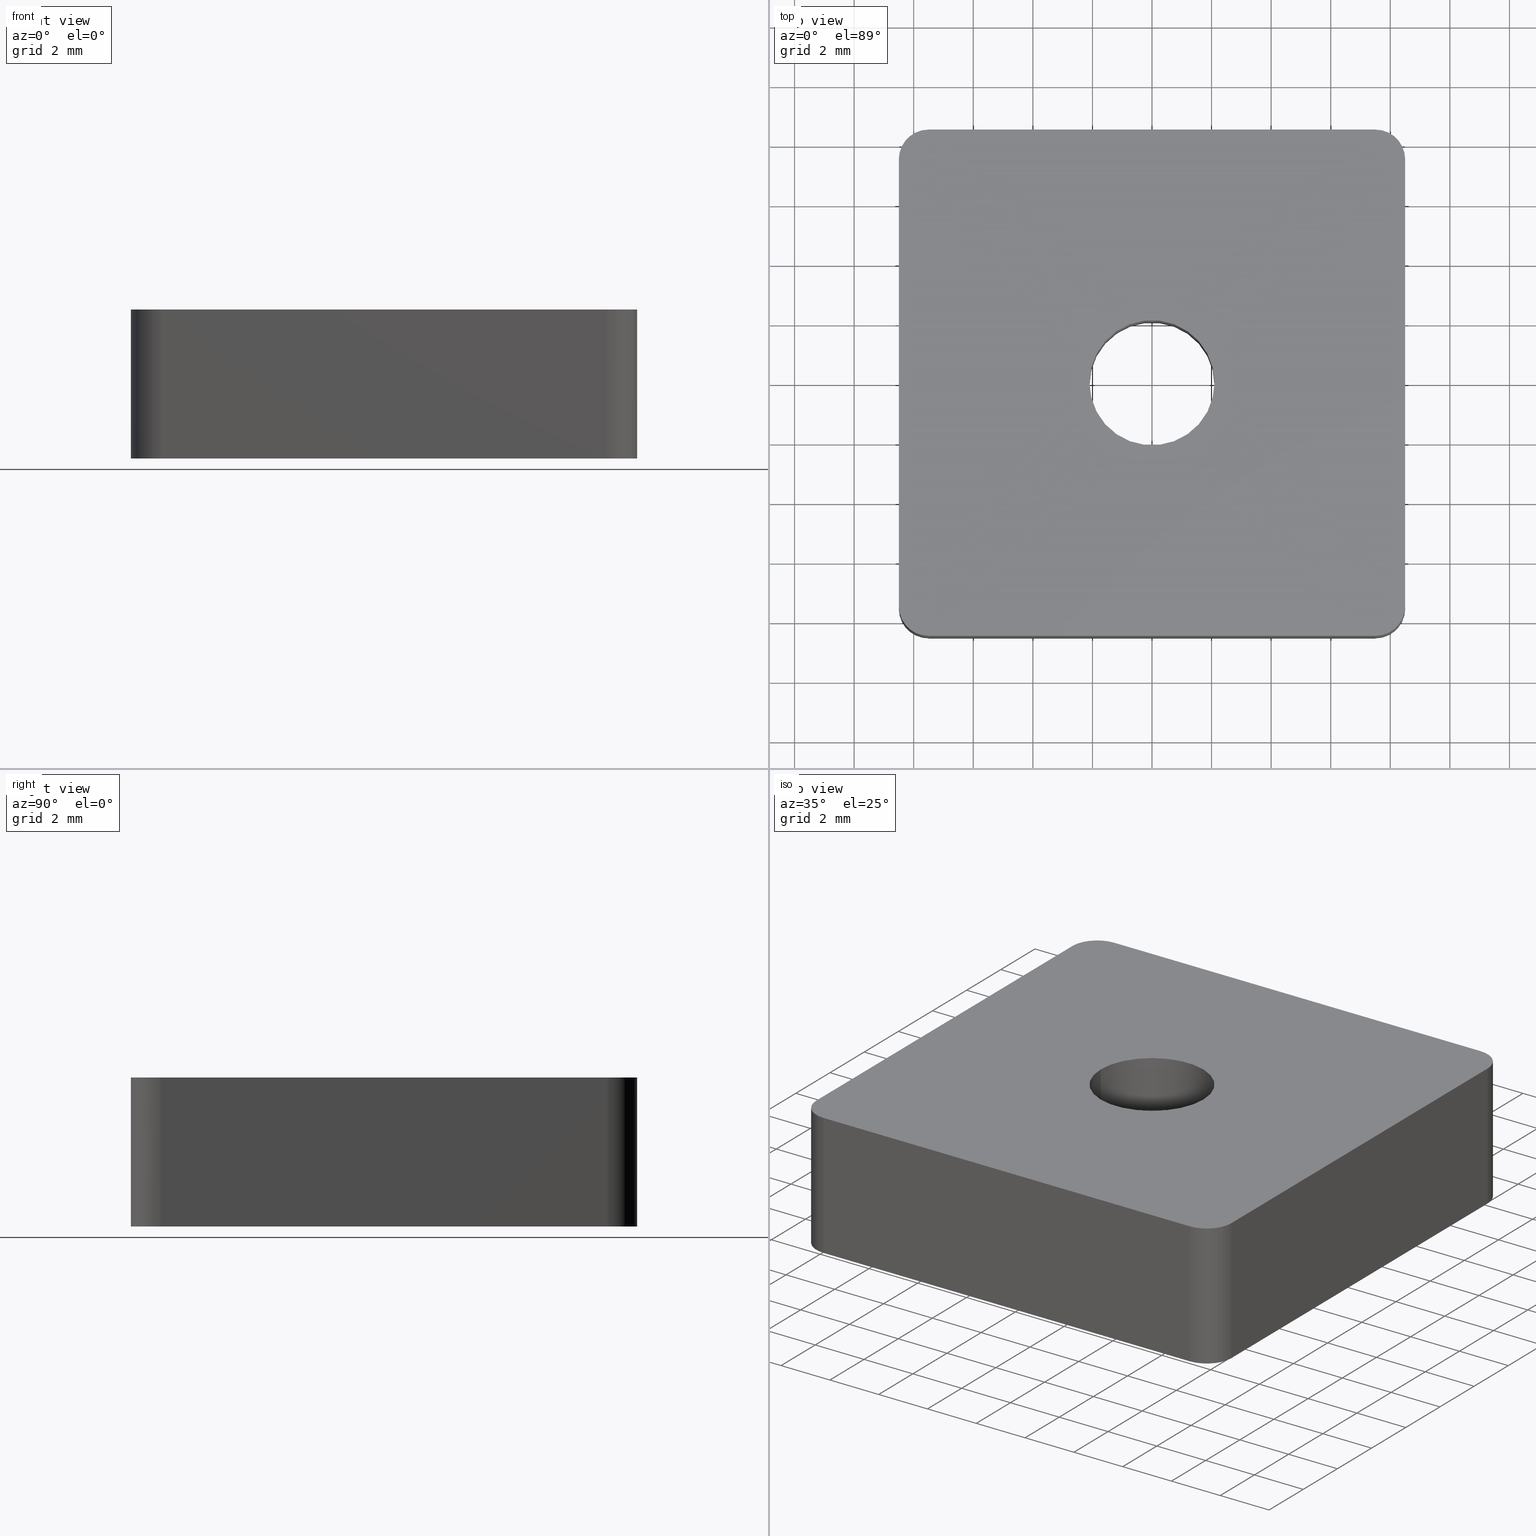
[diagram: canonical four-view strip — front | top / right | iso, engineering-drawing reading convention]
A machine part, canonical four-view strip (front | top / right | iso — engineering-drawing reading convention). The complete STEP part file that produces these views, byte-faithful:
ISO-10303-21;
HEADER;
/****************************************************************
 * Generated by software with PDE/Lib inside                    *
 * PDElib Version v4.4, created Mon 02/23/2004                  *
 * International Technegroup Inc. (www.iti-oh.com)              *
 ****************************************************************/
FILE_DESCRIPTION(('STEP AP203'),'2;1');
FILE_NAME('26.006.00.stp','2011-02-14T10:00:33',(''),(''),'2009.3.110','THINKDESIGN','');
FILE_SCHEMA(('CONFIG_CONTROL_DESIGN'));
ENDSEC;
DATA;
#2=CARTESIAN_POINT('',(7.105427E-015,0.0,-5.000000010000001));
#3=DIRECTION('',(0.0,0.0,1.0));
#4=DIRECTION('',(0.0,1.0,0.0));
#5=AXIS2_PLACEMENT_3D('',#2,#3,#4);
#6=CYLINDRICAL_SURFACE('',#5,2.099999999999997);
#7=CARTESIAN_POINT('',(-2.100000000000001,0.0,-5.0));
#8=VERTEX_POINT('',#7);
#9=CARTESIAN_POINT('',(2.100000000000001,0.0,-5.0));
#10=VERTEX_POINT('',#9);
#11=CARTESIAN_POINT('',(0.0,0.0,-5.0));
#12=DIRECTION('',(0.0,0.0,1.0));
#13=DIRECTION('',(1.0,0.0,0.0));
#14=AXIS2_PLACEMENT_3D('',#11,#12,#13);
#15=CIRCLE('',#14,2.099999999999997);
#16=EDGE_CURVE('',#8,#10,#15,.T.);
#17=ORIENTED_EDGE('',*,*,#16,.F.);
#18=CARTESIAN_POINT('',(-2.100000000000001,0.0,0.0));
#19=VERTEX_POINT('',#18);
#20=CARTESIAN_POINT('',(-2.100000000000001,0.0,-5.0));
#21=DIRECTION('',(0.0,0.0,1.0));
#22=VECTOR('',#21,5.0);
#23=LINE('',#20,#22);
#24=EDGE_CURVE('',#8,#19,#23,.T.);
#25=ORIENTED_EDGE('',*,*,#24,.T.);
#26=CARTESIAN_POINT('',(2.100000000000001,0.0,0.0));
#27=VERTEX_POINT('',#26);
#28=CARTESIAN_POINT('',(0.0,0.0,0.0));
#29=DIRECTION('',(0.0,0.0,1.0));
#30=DIRECTION('',(0.0,1.0,0.0));
#31=AXIS2_PLACEMENT_3D('',#28,#29,#30);
#32=CIRCLE('',#31,2.100000000000001);
#33=EDGE_CURVE('',#19,#27,#32,.T.);
#34=ORIENTED_EDGE('',*,*,#33,.T.);
#35=CARTESIAN_POINT('',(2.100000000000001,0.0,-5.0));
#36=DIRECTION('',(0.0,0.0,1.0));
#37=VECTOR('',#36,5.0);
#38=LINE('',#35,#37);
#39=EDGE_CURVE('',#10,#27,#38,.T.);
#40=ORIENTED_EDGE('',*,*,#39,.F.);
#41=EDGE_LOOP('',(#17,#25,#34,#40));
#42=FACE_OUTER_BOUND('',#41,.T.);
#43=ADVANCED_FACE('',(#42),#6,.F.);
#44=CARTESIAN_POINT('',(-8.500000000000000,-8.249999999999979,0.250000000000000));
#45=DIRECTION('',(1.0,0.0,0.0));
#46=DIRECTION('',(0.0,0.0,-1.0));
#47=AXIS2_PLACEMENT_3D('',#44,#45,#46);
#48=PLANE('',#47);
#49=CARTESIAN_POINT('',(-8.500000000000000,7.500000000000012,0.0));
#50=VERTEX_POINT('',#49);
#51=CARTESIAN_POINT('',(-8.500000000000000,-7.499999999999979,0.0));
#52=VERTEX_POINT('',#51);
#53=CARTESIAN_POINT('',(-8.500000000000000,7.500000000000012,0.0));
#54=DIRECTION('',(0.0,-1.0,0.0));
#55=VECTOR('',#54,14.999999999999989);
#56=LINE('',#53,#55);
#57=EDGE_CURVE('',#50,#52,#56,.T.);
#58=ORIENTED_EDGE('',*,*,#57,.F.);
#59=CARTESIAN_POINT('',(-8.500000000000000,7.500000000000012,-5.0));
#60=VERTEX_POINT('',#59);
#61=CARTESIAN_POINT('',(-8.500000000000000,7.500000000000012,0.0));
#62=DIRECTION('',(0.0,0.0,-1.0));
#63=VECTOR('',#62,5.0);
#64=LINE('',#61,#63);
#65=EDGE_CURVE('',#50,#60,#64,.T.);
#66=ORIENTED_EDGE('',*,*,#65,.T.);
#67=CARTESIAN_POINT('',(-8.500000000000000,-7.499999999999979,-5.0));
#68=VERTEX_POINT('',#67);
#69=CARTESIAN_POINT('',(-8.500000000000000,7.500000000000012,-5.0));
#70=DIRECTION('',(0.0,-1.0,0.0));
#71=VECTOR('',#70,14.999999999999989);
#72=LINE('',#69,#71);
#73=EDGE_CURVE('',#60,#68,#72,.T.);
#74=ORIENTED_EDGE('',*,*,#73,.T.);
#75=CARTESIAN_POINT('',(-8.500000000000000,-7.499999999999979,-5.0));
#76=DIRECTION('',(0.0,0.0,1.0));
#77=VECTOR('',#76,5.0);
#78=LINE('',#75,#77);
#79=EDGE_CURVE('',#68,#52,#78,.T.);
#80=ORIENTED_EDGE('',*,*,#79,.T.);
#81=EDGE_LOOP('',(#58,#66,#74,#80));
#82=FACE_OUTER_BOUND('',#81,.T.);
#83=ADVANCED_FACE('',(#82),#48,.F.);
#84=CARTESIAN_POINT('',(-8.250000000000000,-8.500000000000000,-5.250000000000000));
#85=DIRECTION('',(0.0,1.0,0.0));
#86=DIRECTION('',(0.0,0.0,1.0));
#87=AXIS2_PLACEMENT_3D('',#84,#85,#86);
#88=PLANE('',#87);
#89=CARTESIAN_POINT('',(-7.500000000000000,-8.500000000000000,-5.0));
#90=VERTEX_POINT('',#89);
#91=CARTESIAN_POINT('',(7.499999999999993,-8.500000000000000,-5.0));
#92=VERTEX_POINT('',#91);
#93=CARTESIAN_POINT('',(-7.500000000000000,-8.500000000000000,-5.0));
#94=DIRECTION('',(1.0,0.0,0.0));
#95=VECTOR('',#94,14.999999999999993);
#96=LINE('',#93,#95);
#97=EDGE_CURVE('',#90,#92,#96,.T.);
#98=ORIENTED_EDGE('',*,*,#97,.T.);
#99=CARTESIAN_POINT('',(7.499999999999993,-8.500000000000000,0.0));
#100=VERTEX_POINT('',#99);
#101=CARTESIAN_POINT('',(7.499999999999993,-8.500000000000000,-5.0));
#102=DIRECTION('',(0.0,0.0,1.0));
#103=VECTOR('',#102,5.0);
#104=LINE('',#101,#103);
#105=EDGE_CURVE('',#92,#100,#104,.T.);
#106=ORIENTED_EDGE('',*,*,#105,.T.);
#107=CARTESIAN_POINT('',(-7.500000000000000,-8.500000000000000,0.0));
#108=VERTEX_POINT('',#107);
#109=CARTESIAN_POINT('',(-7.500000000000000,-8.500000000000000,0.0));
#110=DIRECTION('',(1.0,0.0,0.0));
#111=VECTOR('',#110,14.999999999999993);
#112=LINE('',#109,#111);
#113=EDGE_CURVE('',#108,#100,#112,.T.);
#114=ORIENTED_EDGE('',*,*,#113,.F.);
#115=CARTESIAN_POINT('',(-7.500000000000000,-8.500000000000000,0.0));
#116=DIRECTION('',(0.0,0.0,-1.0));
#117=VECTOR('',#116,5.0);
#118=LINE('',#115,#117);
#119=EDGE_CURVE('',#108,#90,#118,.T.);
#120=ORIENTED_EDGE('',*,*,#119,.T.);
#121=EDGE_LOOP('',(#98,#106,#114,#120));
#122=FACE_OUTER_BOUND('',#121,.T.);
#123=ADVANCED_FACE('',(#122),#88,.F.);
#124=CARTESIAN_POINT('',(8.499999999999993,-8.249999999999979,-5.250000000000000));
#125=DIRECTION('',(-1.0,0.0,0.0));
#126=DIRECTION('',(0.0,0.0,1.0));
#127=AXIS2_PLACEMENT_3D('',#124,#125,#126);
#128=PLANE('',#127);
#129=CARTESIAN_POINT('',(8.499999999999993,-7.499999999999979,-5.0));
#130=VERTEX_POINT('',#129);
#131=CARTESIAN_POINT('',(8.499999999999993,7.500000000000012,-5.0));
#132=VERTEX_POINT('',#131);
#133=CARTESIAN_POINT('',(8.499999999999993,-7.499999999999979,-5.0));
#134=DIRECTION('',(0.0,1.0,0.0));
#135=VECTOR('',#134,14.999999999999989);
#136=LINE('',#133,#135);
#137=EDGE_CURVE('',#130,#132,#136,.T.);
#138=ORIENTED_EDGE('',*,*,#137,.T.);
#139=CARTESIAN_POINT('',(8.499999999999993,7.500000000000012,0.0));
#140=VERTEX_POINT('',#139);
#141=CARTESIAN_POINT('',(8.499999999999993,7.500000000000012,-5.0));
#142=DIRECTION('',(0.0,0.0,1.0));
#143=VECTOR('',#142,5.0);
#144=LINE('',#141,#143);
#145=EDGE_CURVE('',#132,#140,#144,.T.);
#146=ORIENTED_EDGE('',*,*,#145,.T.);
#147=CARTESIAN_POINT('',(8.499999999999993,-7.499999999999979,0.0));
#148=VERTEX_POINT('',#147);
#149=CARTESIAN_POINT('',(8.499999999999993,-7.499999999999979,0.0));
#150=DIRECTION('',(0.0,1.0,0.0));
#151=VECTOR('',#150,14.999999999999989);
#152=LINE('',#149,#151);
#153=EDGE_CURVE('',#148,#140,#152,.T.);
#154=ORIENTED_EDGE('',*,*,#153,.F.);
#155=CARTESIAN_POINT('',(8.499999999999993,-7.499999999999979,0.0));
#156=DIRECTION('',(0.0,0.0,-1.0));
#157=VECTOR('',#156,5.0);
#158=LINE('',#155,#157);
#159=EDGE_CURVE('',#148,#130,#158,.T.);
#160=ORIENTED_EDGE('',*,*,#159,.T.);
#161=EDGE_LOOP('',(#138,#146,#154,#160));
#162=FACE_OUTER_BOUND('',#161,.T.);
#163=ADVANCED_FACE('',(#162),#128,.F.);
#164=CARTESIAN_POINT('',(-8.250000000000000,8.500000000000011,0.250000000000000));
#165=DIRECTION('',(0.0,-1.0,0.0));
#166=DIRECTION('',(0.0,0.0,-1.0));
#167=AXIS2_PLACEMENT_3D('',#164,#165,#166);
#168=PLANE('',#167);
#169=CARTESIAN_POINT('',(7.499999999999993,8.500000000000011,0.0));
#170=VERTEX_POINT('',#169);
#171=CARTESIAN_POINT('',(-7.500000000000000,8.500000000000011,0.0));
#172=VERTEX_POINT('',#171);
#173=CARTESIAN_POINT('',(7.499999999999993,8.500000000000011,0.0));
#174=DIRECTION('',(-1.0,0.0,0.0));
#175=VECTOR('',#174,14.999999999999993);
#176=LINE('',#173,#175);
#177=EDGE_CURVE('',#170,#172,#176,.T.);
#178=ORIENTED_EDGE('',*,*,#177,.F.);
#179=CARTESIAN_POINT('',(7.499999999999993,8.500000000000011,-5.0));
#180=VERTEX_POINT('',#179);
#181=CARTESIAN_POINT('',(7.499999999999993,8.500000000000011,0.0));
#182=DIRECTION('',(0.0,0.0,-1.0));
#183=VECTOR('',#182,5.0);
#184=LINE('',#181,#183);
#185=EDGE_CURVE('',#170,#180,#184,.T.);
#186=ORIENTED_EDGE('',*,*,#185,.T.);
#187=CARTESIAN_POINT('',(-7.500000000000000,8.500000000000011,-5.0));
#188=VERTEX_POINT('',#187);
#189=CARTESIAN_POINT('',(7.499999999999993,8.500000000000011,-5.0));
#190=DIRECTION('',(-1.0,0.0,0.0));
#191=VECTOR('',#190,14.999999999999993);
#192=LINE('',#189,#191);
#193=EDGE_CURVE('',#180,#188,#192,.T.);
#194=ORIENTED_EDGE('',*,*,#193,.T.);
#195=CARTESIAN_POINT('',(-7.500000000000000,8.500000000000011,-5.0));
#196=DIRECTION('',(0.0,0.0,1.0));
#197=VECTOR('',#196,5.0);
#198=LINE('',#195,#197);
#199=EDGE_CURVE('',#188,#172,#198,.T.);
#200=ORIENTED_EDGE('',*,*,#199,.T.);
#201=EDGE_LOOP('',(#178,#186,#194,#200));
#202=FACE_OUTER_BOUND('',#201,.T.);
#203=ADVANCED_FACE('',(#202),#168,.F.);
#204=CARTESIAN_POINT('',(-9.350000000000001,-9.350000000000001,0.0));
#205=DIRECTION('',(0.0,0.0,1.0));
#206=DIRECTION('',(1.0,0.0,0.0));
#207=AXIS2_PLACEMENT_3D('',#204,#205,#206);
#208=PLANE('',#207);
#209=ORIENTED_EDGE('',*,*,#153,.T.);
#210=CARTESIAN_POINT('',(7.499999999999993,7.500000000000012,0.0));
#211=DIRECTION('',(0.0,0.0,1.0));
#212=DIRECTION('',(1.0,0.0,0.0));
#213=AXIS2_PLACEMENT_3D('',#210,#211,#212);
#214=CIRCLE('',#213,1.000000000000001);
#215=EDGE_CURVE('',#140,#170,#214,.T.);
#216=ORIENTED_EDGE('',*,*,#215,.T.);
#217=ORIENTED_EDGE('',*,*,#177,.T.);
#218=CARTESIAN_POINT('',(-7.500000000000000,7.500000000000012,0.0));
#219=DIRECTION('',(0.0,0.0,1.0));
#220=DIRECTION('',(1.0,0.0,0.0));
#221=AXIS2_PLACEMENT_3D('',#218,#219,#220);
#222=CIRCLE('',#221,1.000000000000001);
#223=EDGE_CURVE('',#172,#50,#222,.T.);
#224=ORIENTED_EDGE('',*,*,#223,.T.);
#225=ORIENTED_EDGE('',*,*,#57,.T.);
#226=CARTESIAN_POINT('',(-7.500000000000000,-7.499999999999979,0.0));
#227=DIRECTION('',(0.0,0.0,1.0));
#228=DIRECTION('',(1.0,0.0,0.0));
#229=AXIS2_PLACEMENT_3D('',#226,#227,#228);
#230=CIRCLE('',#229,1.000000000000001);
#231=EDGE_CURVE('',#52,#108,#230,.T.);
#232=ORIENTED_EDGE('',*,*,#231,.T.);
#233=ORIENTED_EDGE('',*,*,#113,.T.);
#234=CARTESIAN_POINT('',(7.499999999999993,-7.499999999999979,0.0));
#235=DIRECTION('',(0.0,0.0,1.0));
#236=DIRECTION('',(1.0,0.0,0.0));
#237=AXIS2_PLACEMENT_3D('',#234,#235,#236);
#238=CIRCLE('',#237,1.000000000000001);
#239=EDGE_CURVE('',#100,#148,#238,.T.);
#240=ORIENTED_EDGE('',*,*,#239,.T.);
#241=EDGE_LOOP('',(#209,#216,#217,#224,#225,#232,#233,#240));
#242=FACE_OUTER_BOUND('',#241,.T.);
#243=CARTESIAN_POINT('',(0.0,0.0,0.0));
#244=DIRECTION('',(0.0,0.0,1.0));
#245=DIRECTION('',(0.0,1.0,0.0));
#246=AXIS2_PLACEMENT_3D('',#243,#244,#245);
#247=CIRCLE('',#246,2.100000000000001);
#248=EDGE_CURVE('',#27,#19,#247,.T.);
#249=ORIENTED_EDGE('',*,*,#248,.F.);
#250=ORIENTED_EDGE('',*,*,#33,.F.);
#251=EDGE_LOOP('',(#249,#250));
#252=FACE_BOUND('',#251,.T.);
#253=ADVANCED_FACE('',(#242,#252),#208,.T.);
#254=CARTESIAN_POINT('',(-9.350000000000001,-9.350000000000001,-5.0));
#255=DIRECTION('',(0.0,0.0,1.0));
#256=DIRECTION('',(1.0,0.0,0.0));
#257=AXIS2_PLACEMENT_3D('',#254,#255,#256);
#258=PLANE('',#257);
#259=ORIENTED_EDGE('',*,*,#193,.F.);
#260=CARTESIAN_POINT('',(7.499999999999993,7.500000000000012,-5.0));
#261=DIRECTION('',(0.0,0.0,-1.0));
#262=DIRECTION('',(1.0,0.0,0.0));
#263=AXIS2_PLACEMENT_3D('',#260,#261,#262);
#264=CIRCLE('',#263,1.000000000000001);
#265=EDGE_CURVE('',#180,#132,#264,.T.);
#266=ORIENTED_EDGE('',*,*,#265,.T.);
#267=ORIENTED_EDGE('',*,*,#137,.F.);
#268=CARTESIAN_POINT('',(7.499999999999993,-7.499999999999979,-5.0));
#269=DIRECTION('',(0.0,0.0,-1.0));
#270=DIRECTION('',(1.0,0.0,0.0));
#271=AXIS2_PLACEMENT_3D('',#268,#269,#270);
#272=CIRCLE('',#271,1.000000000000001);
#273=EDGE_CURVE('',#130,#92,#272,.T.);
#274=ORIENTED_EDGE('',*,*,#273,.T.);
#275=ORIENTED_EDGE('',*,*,#97,.F.);
#276=CARTESIAN_POINT('',(-7.500000000000000,-7.499999999999979,-5.0));
#277=DIRECTION('',(0.0,0.0,-1.0));
#278=DIRECTION('',(1.0,0.0,0.0));
#279=AXIS2_PLACEMENT_3D('',#276,#277,#278);
#280=CIRCLE('',#279,1.000000000000001);
#281=EDGE_CURVE('',#90,#68,#280,.T.);
#282=ORIENTED_EDGE('',*,*,#281,.T.);
#283=ORIENTED_EDGE('',*,*,#73,.F.);
#284=CARTESIAN_POINT('',(-7.500000000000000,7.500000000000012,-5.0));
#285=DIRECTION('',(0.0,0.0,-1.0));
#286=DIRECTION('',(1.0,0.0,0.0));
#287=AXIS2_PLACEMENT_3D('',#284,#285,#286);
#288=CIRCLE('',#287,1.000000000000001);
#289=EDGE_CURVE('',#60,#188,#288,.T.);
#290=ORIENTED_EDGE('',*,*,#289,.T.);
#291=EDGE_LOOP('',(#259,#266,#267,#274,#275,#282,#283,#290));
#292=FACE_OUTER_BOUND('',#291,.T.);
#293=CARTESIAN_POINT('',(0.0,0.0,-5.0));
#294=DIRECTION('',(0.0,0.0,1.0));
#295=DIRECTION('',(1.0,0.0,0.0));
#296=AXIS2_PLACEMENT_3D('',#293,#294,#295);
#297=CIRCLE('',#296,2.099999999999997);
#298=EDGE_CURVE('',#10,#8,#297,.T.);
#299=ORIENTED_EDGE('',*,*,#298,.T.);
#300=ORIENTED_EDGE('',*,*,#16,.T.);
#301=EDGE_LOOP('',(#299,#300));
#302=FACE_BOUND('',#301,.T.);
#303=ADVANCED_FACE('',(#292,#302),#258,.F.);
#304=CARTESIAN_POINT('',(0.0,7.105427E-015,-5.000000010000001));
#305=DIRECTION('',(0.0,0.0,1.0));
#306=DIRECTION('',(0.0,-1.0,0.0));
#307=AXIS2_PLACEMENT_3D('',#304,#305,#306);
#308=CYLINDRICAL_SURFACE('',#307,2.099999999999997);
#309=ORIENTED_EDGE('',*,*,#24,.F.);
#310=ORIENTED_EDGE('',*,*,#298,.F.);
#311=ORIENTED_EDGE('',*,*,#39,.T.);
#312=ORIENTED_EDGE('',*,*,#248,.T.);
#313=EDGE_LOOP('',(#309,#310,#311,#312));
#314=FACE_OUTER_BOUND('',#313,.T.);
#315=ADVANCED_FACE('',(#314),#308,.F.);
#316=CARTESIAN_POINT('',(-7.499999999999993,-7.499999999999972,1.000000E-008));
#317=DIRECTION('',(0.0,0.0,-1.0));
#318=DIRECTION('',(0.707106781186547,0.707106781186548,0.0));
#319=AXIS2_PLACEMENT_3D('',#316,#317,#318);
#320=CYLINDRICAL_SURFACE('',#319,1.000000000000001);
#321=ORIENTED_EDGE('',*,*,#231,.F.);
#322=ORIENTED_EDGE('',*,*,#79,.F.);
#323=ORIENTED_EDGE('',*,*,#281,.F.);
#324=ORIENTED_EDGE('',*,*,#119,.F.);
#325=EDGE_LOOP('',(#321,#322,#323,#324));
#326=FACE_OUTER_BOUND('',#325,.T.);
#327=ADVANCED_FACE('',(#326),#320,.T.);
#328=CARTESIAN_POINT('',(7.499999999999993,-7.499999999999979,1.000000E-008));
#329=DIRECTION('',(0.0,0.0,-1.0));
#330=DIRECTION('',(-1.0,0.0,0.0));
#331=AXIS2_PLACEMENT_3D('',#328,#329,#330);
#332=CYLINDRICAL_SURFACE('',#331,1.000000000000001);
#333=ORIENTED_EDGE('',*,*,#239,.F.);
#334=ORIENTED_EDGE('',*,*,#105,.F.);
#335=ORIENTED_EDGE('',*,*,#273,.F.);
#336=ORIENTED_EDGE('',*,*,#159,.F.);
#337=EDGE_LOOP('',(#333,#334,#335,#336));
#338=FACE_OUTER_BOUND('',#337,.T.);
#339=ADVANCED_FACE('',(#338),#332,.T.);
#340=CARTESIAN_POINT('',(-7.500000000000000,7.500000000000012,1.000000E-008));
#341=DIRECTION('',(0.0,0.0,-1.0));
#342=DIRECTION('',(0.707106781186547,-0.707106781186548,0.0));
#343=AXIS2_PLACEMENT_3D('',#340,#341,#342);
#344=CYLINDRICAL_SURFACE('',#343,1.000000000000001);
#345=ORIENTED_EDGE('',*,*,#223,.F.);
#346=ORIENTED_EDGE('',*,*,#199,.F.);
#347=ORIENTED_EDGE('',*,*,#289,.F.);
#348=ORIENTED_EDGE('',*,*,#65,.F.);
#349=EDGE_LOOP('',(#345,#346,#347,#348));
#350=FACE_OUTER_BOUND('',#349,.T.);
#351=ADVANCED_FACE('',(#350),#344,.T.);
#352=CARTESIAN_POINT('',(7.499999999999993,7.500000000000012,1.000000E-008));
#353=DIRECTION('',(0.0,0.0,-1.0));
#354=DIRECTION('',(-1.0,0.0,0.0));
#355=AXIS2_PLACEMENT_3D('',#352,#353,#354);
#356=CYLINDRICAL_SURFACE('',#355,1.000000000000001);
#357=ORIENTED_EDGE('',*,*,#215,.F.);
#358=ORIENTED_EDGE('',*,*,#145,.F.);
#359=ORIENTED_EDGE('',*,*,#265,.F.);
#360=ORIENTED_EDGE('',*,*,#185,.F.);
#361=EDGE_LOOP('',(#357,#358,#359,#360));
#362=FACE_OUTER_BOUND('',#361,.T.);
#363=ADVANCED_FACE('',(#362),#356,.T.);
#364=CLOSED_SHELL('',(#43,#83,#123,#163,#203,#253,#303,#315,#327,#339,#351,#363));
#365=MANIFOLD_SOLID_BREP('Importato1',#364);
#371=(NAMED_UNIT(*)PLANE_ANGLE_UNIT()SI_UNIT($,.RADIAN.));
#372=DIMENSIONAL_EXPONENTS(0.0,0.0,0.0,0.0,0.0,0.0,0.0);
#373=PLANE_ANGLE_MEASURE_WITH_UNIT(PLANE_ANGLE_MEASURE(0.017453292500000),#371);
#377=(CONVERSION_BASED_UNIT('DEGREE',#373)NAMED_UNIT(#372)PLANE_ANGLE_UNIT());
#381=(NAMED_UNIT(*)SI_UNIT($,.STERADIAN.)SOLID_ANGLE_UNIT());
#385=(LENGTH_UNIT()NAMED_UNIT(*)SI_UNIT(.MILLI.,.METRE.));
#387=UNCERTAINTY_MEASURE_WITH_UNIT(LENGTH_MEASURE(0.001000000000000),#385,'DISTANCE_ACCURACY_VALUE','');
#389=(GEOMETRIC_REPRESENTATION_CONTEXT(3)GLOBAL_UNCERTAINTY_ASSIGNED_CONTEXT((#387))GLOBAL_UNIT_ASSIGNED_CONTEXT((#377,#381,#385))REPRESENTATION_CONTEXT('thinkdesign','2009.3.110'));
#390=ADVANCED_BREP_SHAPE_REPRESENTATION('',(#365),#389);
#391=APPLICATION_CONTEXT('configuration controlled 3D designs of mechanical parts and assemblies');
#392=APPLICATION_PROTOCOL_DEFINITION('International Standard','config_control_design',1995,#391);
#393=MECHANICAL_CONTEXT('None',#391,'mechanical');
#394=PRODUCT('None','None','None',(#393));
#395=PRODUCT_RELATED_PRODUCT_CATEGORY('detail',$,(#394));
#396=PRODUCT_CATEGORY('part',$);
#397=PRODUCT_CATEGORY_RELATIONSHIP('None','None',#396,#395);
#398=PERSON('PERSON1','None','None',$,$,$);
#399=ORGANIZATION('','None','None');
#400=PERSON_AND_ORGANIZATION(#398,#399);
#401=PERSON_AND_ORGANIZATION_ROLE('design_owner');
#402=CC_DESIGN_PERSON_AND_ORGANIZATION_ASSIGNMENT(#400,#401,(#394));
#403=PRODUCT_DEFINITION_FORMATION_WITH_SPECIFIED_SOURCE('None','None',#394,.NOT_KNOWN.);
#404=PERSON('PERSON2','None','None',$,$,$);
#405=ORGANIZATION('','None','None');
#406=PERSON_AND_ORGANIZATION(#404,#405);
#407=PERSON_AND_ORGANIZATION_ROLE('creator');
#408=CC_DESIGN_PERSON_AND_ORGANIZATION_ASSIGNMENT(#406,#407,(#403));
#409=PERSON('PERSON3','None','None',$,$,$);
#410=ORGANIZATION('','None','None');
#411=PERSON_AND_ORGANIZATION(#409,#410);
#412=PERSON_AND_ORGANIZATION_ROLE('part_supplier');
#413=CC_DESIGN_PERSON_AND_ORGANIZATION_ASSIGNMENT(#411,#412,(#403));
#414=APPROVAL_STATUS('approved');
#415=APPROVAL(#414,'None');
#416=PERSON('PERSON4','None','None',$,$,$);
#417=ORGANIZATION('','None','None');
#418=PERSON_AND_ORGANIZATION(#416,#417);
#419=APPROVAL_ROLE('None');
#420=APPROVAL_PERSON_ORGANIZATION(#418,#415,#419);
#421=CALENDAR_DATE(2011,14,2);
#422=COORDINATED_UNIVERSAL_TIME_OFFSET(0,0,.AHEAD.);
#423=LOCAL_TIME(10,0,33.0,#422);
#424=DATE_AND_TIME(#421,#423);
#425=APPROVAL_DATE_TIME(#424,#415);
#426=CC_DESIGN_APPROVAL(#415,(#403));
#427=SECURITY_CLASSIFICATION_LEVEL('unclassified');
#428=SECURITY_CLASSIFICATION('None','None',#427);
#429=CC_DESIGN_SECURITY_CLASSIFICATION(#428,(#403));
#430=APPROVAL_STATUS('approved');
#431=APPROVAL(#430,'None');
#432=PERSON('PERSON5','None','None',$,$,$);
#433=ORGANIZATION('','None','None');
#434=PERSON_AND_ORGANIZATION(#432,#433);
#435=APPROVAL_ROLE('None');
#436=APPROVAL_PERSON_ORGANIZATION(#434,#431,#435);
#437=CALENDAR_DATE(2011,14,2);
#438=COORDINATED_UNIVERSAL_TIME_OFFSET(0,0,.AHEAD.);
#439=LOCAL_TIME(10,0,33.0,#438);
#440=DATE_AND_TIME(#437,#439);
#441=APPROVAL_DATE_TIME(#440,#431);
#442=CC_DESIGN_APPROVAL(#431,(#428));
#443=PERSON('PERSON6','None','None',$,$,$);
#444=ORGANIZATION('','None','None');
#445=PERSON_AND_ORGANIZATION(#443,#444);
#446=PERSON_AND_ORGANIZATION_ROLE('classification_officer');
#447=CC_DESIGN_PERSON_AND_ORGANIZATION_ASSIGNMENT(#445,#446,(#428));
#448=DATE_TIME_ROLE('classification_date');
#449=CALENDAR_DATE(2011,14,2);
#450=COORDINATED_UNIVERSAL_TIME_OFFSET(0,0,.AHEAD.);
#451=LOCAL_TIME(10,0,33.0,#450);
#452=DATE_AND_TIME(#449,#451);
#453=CC_DESIGN_DATE_AND_TIME_ASSIGNMENT(#452,#448,(#428));
#454=DESIGN_CONTEXT('part definition',#391,'design');
#455=DOCUMENT_TYPE('cad_filename');
#456=DOCUMENT('None','None','None',#455);
#457=PRODUCT_DEFINITION_WITH_ASSOCIATED_DOCUMENTS('None','None',#403,#454,(#456));
#458=PERSON('PERSON7','None','None',$,$,$);
#459=ORGANIZATION('','None','None');
#460=PERSON_AND_ORGANIZATION(#458,#459);
#461=PERSON_AND_ORGANIZATION_ROLE('creator');
#462=CC_DESIGN_PERSON_AND_ORGANIZATION_ASSIGNMENT(#460,#461,(#457));
#463=DATE_TIME_ROLE('creation_date');
#464=CALENDAR_DATE(2011,14,2);
#465=COORDINATED_UNIVERSAL_TIME_OFFSET(0,0,.AHEAD.);
#466=LOCAL_TIME(10,0,33.0,#465);
#467=DATE_AND_TIME(#464,#466);
#468=CC_DESIGN_DATE_AND_TIME_ASSIGNMENT(#467,#463,(#457));
#469=APPROVAL_STATUS('approved');
#470=APPROVAL(#469,'None');
#471=PERSON('PERSON8','None','None',$,$,$);
#472=ORGANIZATION('','None','None');
#473=PERSON_AND_ORGANIZATION(#471,#472);
#474=APPROVAL_ROLE('None');
#475=APPROVAL_PERSON_ORGANIZATION(#473,#470,#474);
#476=CALENDAR_DATE(2011,14,2);
#477=COORDINATED_UNIVERSAL_TIME_OFFSET(0,0,.AHEAD.);
#478=LOCAL_TIME(10,0,33.0,#477);
#479=DATE_AND_TIME(#476,#478);
#480=APPROVAL_DATE_TIME(#479,#470);
#481=CC_DESIGN_APPROVAL(#470,(#457));
#482=PRODUCT_DEFINITION_SHAPE('None','None',#457);
#483=SHAPE_DEFINITION_REPRESENTATION(#482,#390);
#484=DIMENSIONAL_EXPONENTS(0.0,0.0,0.0,0.0,0.0,0.0,0.0);
#485=DIMENSIONAL_EXPONENTS(1.0,0.0,0.0,0.0,0.0,0.0,0.0);
ENDSEC;
END-ISO-10303-21;
